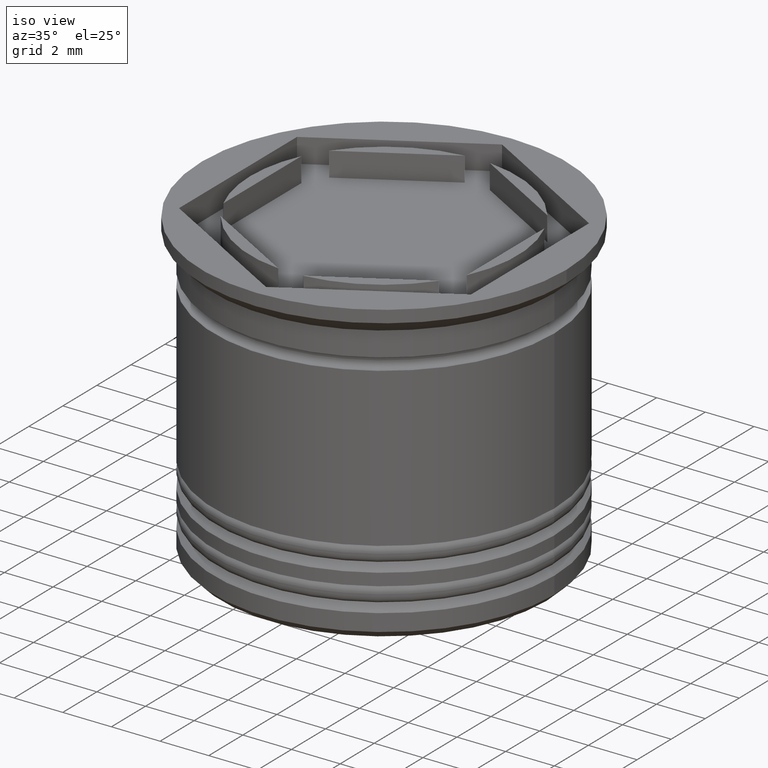
[diagram: clean part render]
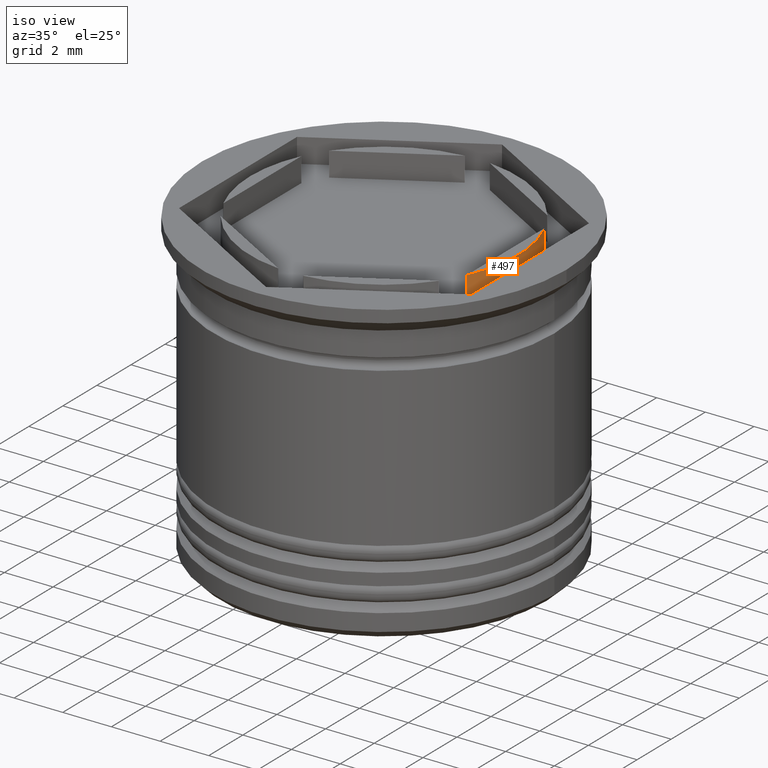
[diagram: same view with one face highlighted and labeled with its STEP entity id]
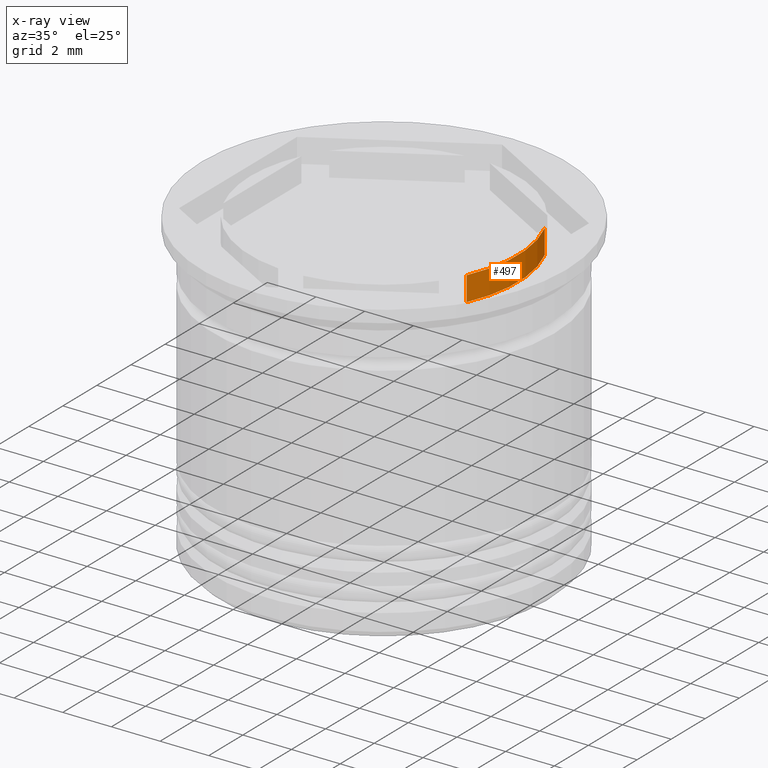
[diagram: x-ray of the same camera — body ghosted, the highlighted face saturated]
A machine part, iso view. The second image highlights one B-rep face of the part: STEP entity #497.
The next image is the same camera in x-ray: the body ghosted, the highlighted face saturated — about 0% of this face is hidden behind the body in this view.
In plain terms, the highlighted cylindrical surface (partial cylindrical patch) has radius 5.5 mm, axis along (-0, -0, -1).
Its self-contained STEP definition (entity closure, byte-faithful):
#107 = ORIENTED_EDGE ( 'NONE', *, *, #1942, .F. ) ;
#158 = DIRECTION ( 'NONE',  ( -0.000000000000000000, -0.000000000000000000, -1.000000000000000000 ) ) ;
#161 = EDGE_LOOP ( 'NONE', ( #107, #1159, #613, #1273 ) ) ;
#204 = CARTESIAN_POINT ( 'NONE',  ( 5.000000000000000888, 2.291287847477922135, 15.55634918610404682 ) ) ;
#235 = CARTESIAN_POINT ( 'NONE',  ( 5.000000000000000888, 2.291287847477922135, -1.000000000000000888 ) ) ;
#252 = VECTOR ( 'NONE', #158, 1000.000000000000000 ) ;
#464 = EDGE_CURVE ( 'NONE', #1838, #1558, #821, .T. ) ;
#480 = DIRECTION ( 'NONE',  ( -0.000000000000000000, -0.000000000000000000, 1.000000000000000000 ) ) ;
#497 = ADVANCED_FACE ( 'NONE', ( #588 ), #887, .T. ) ;
#584 = VERTEX_POINT ( 'NONE', #1644 ) ;
#588 = FACE_OUTER_BOUND ( 'NONE', #161, .T. ) ;
#613 = ORIENTED_EDGE ( 'NONE', *, *, #696, .T. ) ;
#633 = CARTESIAN_POINT ( 'NONE',  ( 4.999999999999999112, -2.291287847477924355, 15.55634918610404682 ) ) ;
#696 = EDGE_CURVE ( 'NONE', #1231, #1838, #772, .T. ) ;
#772 = CIRCLE ( 'NONE', #1880, 5.500000000000001776 ) ;
#821 = LINE ( 'NONE', #204, #1470 ) ;
#875 = CARTESIAN_POINT ( 'NONE',  ( 0.000000000000000000, 0.000000000000000000, -1.000000000000000000 ) ) ;
#887 = CYLINDRICAL_SURFACE ( 'NONE', #1203, 5.500000000000001776 ) ;
#998 = CIRCLE ( 'NONE', #1672, 5.500000000000001776 ) ;
#1025 = DIRECTION ( 'NONE',  ( 0.000000000000000000, 0.000000000000000000, 1.000000000000000000 ) ) ;
#1045 = DIRECTION ( 'NONE',  ( -0.000000000000000000, -0.000000000000000000, -1.000000000000000000 ) ) ;
#1094 = CARTESIAN_POINT ( 'NONE',  ( 0.000000000000000000, 0.000000000000000000, 0.000000000000000000 ) ) ;
#1159 = ORIENTED_EDGE ( 'NONE', *, *, #1458, .T. ) ;
#1203 = AXIS2_PLACEMENT_3D ( 'NONE', #1774, #1045, #1339 ) ;
#1231 = VERTEX_POINT ( 'NONE', #1496 ) ;
#1273 = ORIENTED_EDGE ( 'NONE', *, *, #464, .T. ) ;
#1276 = LINE ( 'NONE', #633, #252 ) ;
#1339 = DIRECTION ( 'NONE',  ( -1.000000000000000000, 0.000000000000000000, 0.000000000000000000 ) ) ;
#1429 = DIRECTION ( 'NONE',  ( 0.000000000000000000, 0.000000000000000000, 1.000000000000000000 ) ) ;
#1458 = EDGE_CURVE ( 'NONE', #584, #1231, #1276, .T. ) ;
#1470 = VECTOR ( 'NONE', #1429, 1000.000000000000000 ) ;
#1496 = CARTESIAN_POINT ( 'NONE',  ( 4.999999999999999112, -2.291287847477924355, -1.000000000000000888 ) ) ;
#1558 = VERTEX_POINT ( 'NONE', #1663 ) ;
#1644 = CARTESIAN_POINT ( 'NONE',  ( 4.999999999999999112, -2.291287847477924355, 0.000000000000000000 ) ) ;
#1663 = CARTESIAN_POINT ( 'NONE',  ( 5.000000000000000888, 2.291287847477921691, 0.000000000000000000 ) ) ;
#1672 = AXIS2_PLACEMENT_3D ( 'NONE', #1094, #480, #1824 ) ;
#1774 = CARTESIAN_POINT ( 'NONE',  ( 0.000000000000000000, 0.000000000000000000, 15.55634918610404682 ) ) ;
#1803 = DIRECTION ( 'NONE',  ( 1.000000000000000000, 0.000000000000000000, 0.000000000000000000 ) ) ;
#1824 = DIRECTION ( 'NONE',  ( 1.000000000000000000, 0.000000000000000000, 0.000000000000000000 ) ) ;
#1838 = VERTEX_POINT ( 'NONE', #235 ) ;
#1880 = AXIS2_PLACEMENT_3D ( 'NONE', #875, #1025, #1803 ) ;
#1942 = EDGE_CURVE ( 'NONE', #584, #1558, #998, .T. ) ;